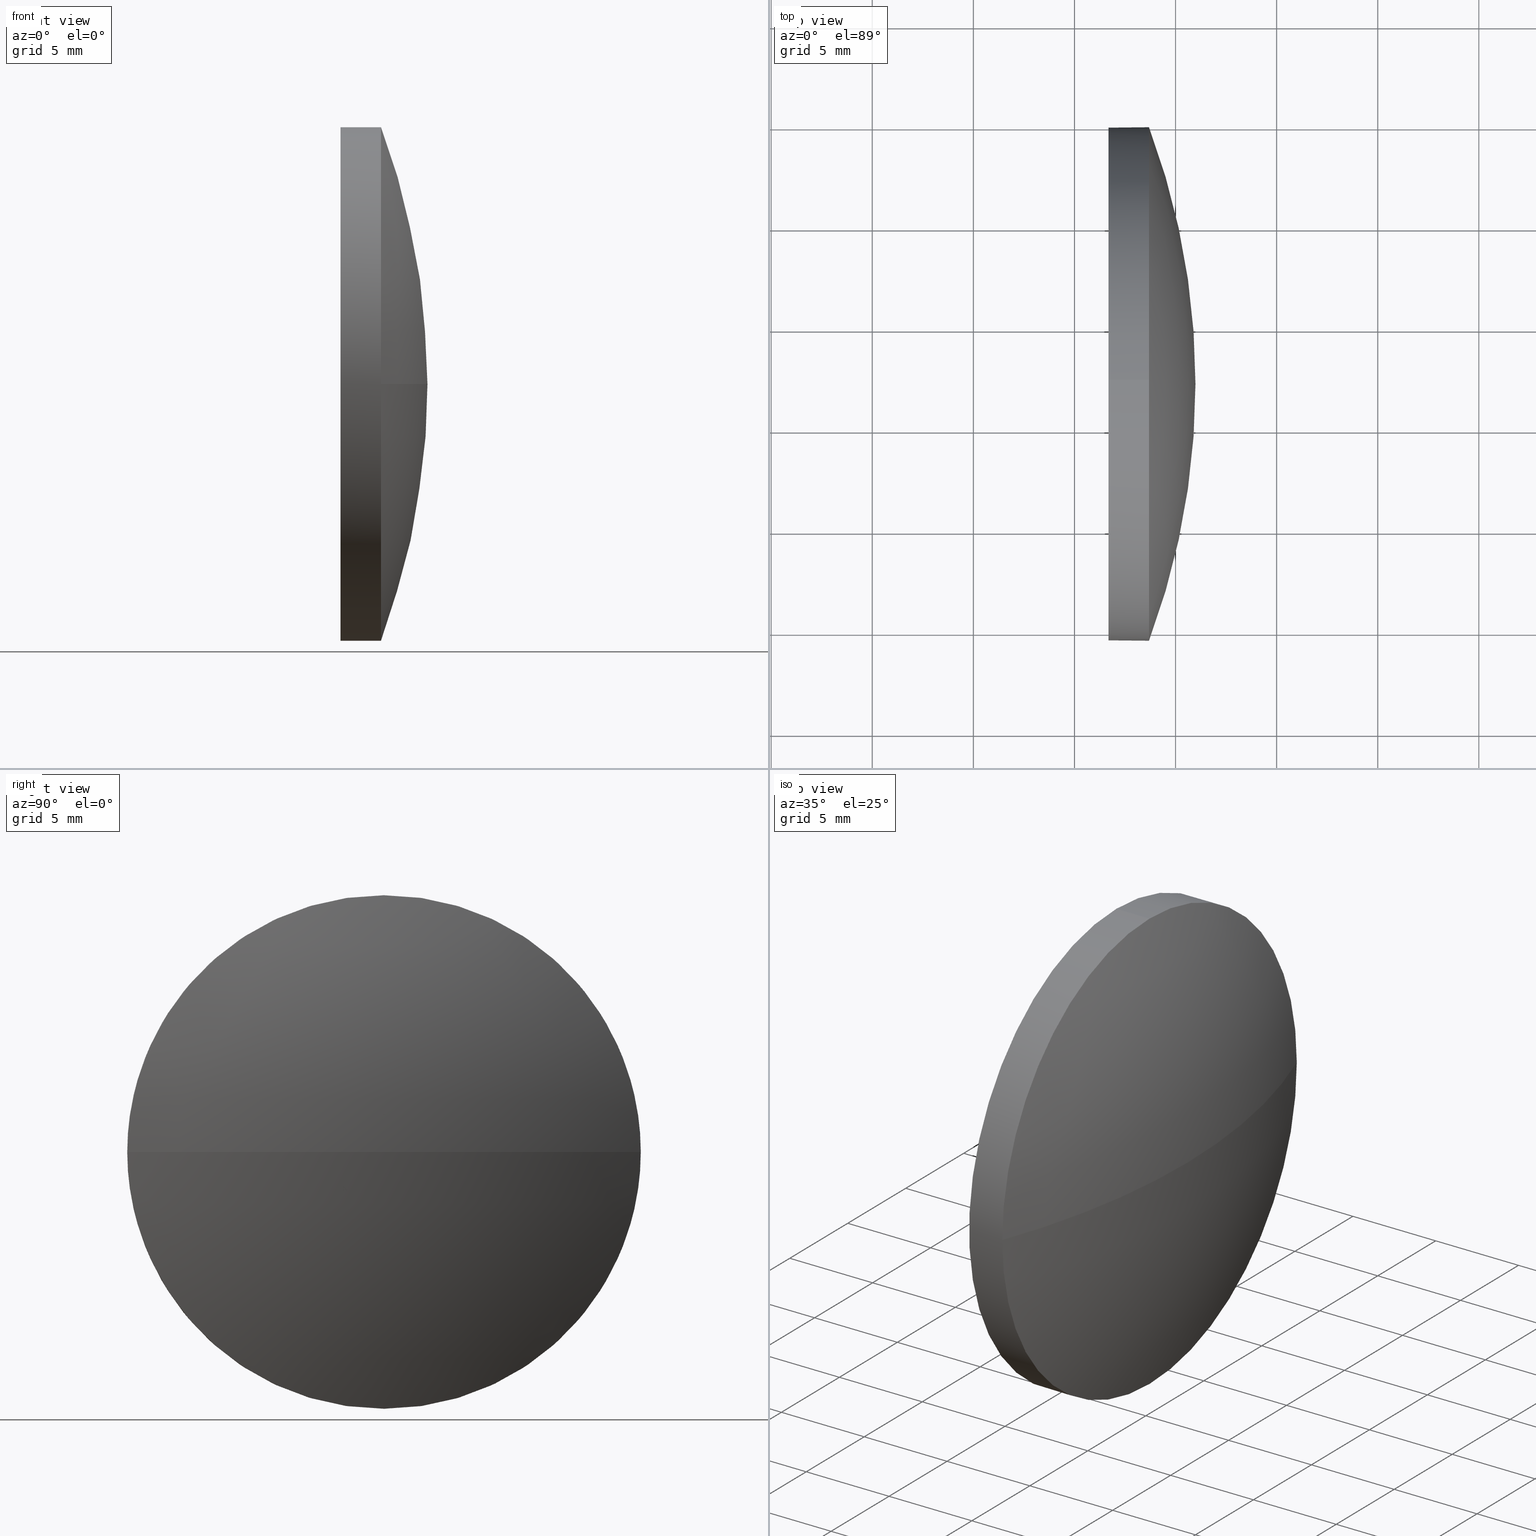
[diagram: canonical four-view strip — front | top / right | iso, engineering-drawing reading convention]
A machine part, canonical four-view strip (front | top / right | iso — engineering-drawing reading convention). The complete STEP part file that produces these views, byte-faithful:
ISO-10303-21;
HEADER;
FILE_DESCRIPTION (( 'STEP AP214' ),
    '1' );
FILE_NAME ('100467.STEP',
    '2019-06-11T02:08:26',
    ( '' ),
    ( '' ),
    'SwSTEP 2.0',
    'SolidWorks 2016',
    '' );
FILE_SCHEMA (( 'AUTOMOTIVE_DESIGN' ));
ENDSEC;

DATA;
#1 = UNCERTAINTY_MEASURE_WITH_UNIT (LENGTH_MEASURE( 1.000000000000000100E-005 ), #19, 'distance_accuracy_value', 'NONE');
#2 = AXIS2_PLACEMENT_3D ( 'NONE', #81, #112, #55 ) ;
#3 = DIRECTION ( 'NONE',  ( 0.0000000000000000000, 0.0000000000000000000, 1.000000000000000000 ) ) ;
#4 = AXIS2_PLACEMENT_3D ( 'NONE', #176, #29, #178 ) ;
#5 = FILL_AREA_STYLE_COLOUR ( '', #90 ) ;
#6 = ORIENTED_EDGE ( 'NONE', *, *, #128, .F. ) ;
#7 = DIRECTION ( 'NONE',  ( -1.000000000000000000, -0.0000000000000000000, -0.0000000000000000000 ) ) ;
#8 =( NAMED_UNIT ( * ) PLANE_ANGLE_UNIT ( ) SI_UNIT ( $, .RADIAN. ) );
#9 = CARTESIAN_POINT ( 'NONE',  ( 478.6849602909269400, 137.2007882096437800, 0.0000000000000000000 ) ) ;
#10 = AXIS2_PLACEMENT_3D ( 'NONE', #63, #78, #20 ) ;
#11 = VERTEX_POINT ( 'NONE', #93 ) ;
#12 = DIRECTION ( 'NONE',  ( 0.0000000000000000000, 0.0000000000000000000, 1.000000000000000000 ) ) ;
#13 = AXIS2_PLACEMENT_3D ( 'NONE', #124, #39, #137 ) ;
#14 = LINE ( 'NONE', #27, #159 ) ;
#15 = MANIFOLD_SOLID_BREP ( '��ת1', #95 ) ;
#16 = AXIS2_PLACEMENT_3D ( 'NONE', #9, #7, #165 ) ;
#17 = AXIS2_PLACEMENT_3D ( 'NONE', #170, #50, #106 ) ;
#18 =( NAMED_UNIT ( * ) SI_UNIT ( $, .STERADIAN. ) SOLID_ANGLE_UNIT ( ) );
#19 =( LENGTH_UNIT ( ) NAMED_UNIT ( * ) SI_UNIT ( .MILLI., .METRE. ) );
#20 = DIRECTION ( 'NONE',  ( 0.0000000000000000000, 1.000000000000000000, 0.0000000000000000000 ) ) ;
#21 = CIRCLE ( 'NONE', #2, 12.70000000000004500 ) ;
#22 = ORIENTED_EDGE ( 'NONE', *, *, #155, .F. ) ;
#23 = CARTESIAN_POINT ( 'NONE',  ( 478.6849602909269400, 137.2007882096437800, 0.0000000000000000000 ) ) ;
#24 = ADVANCED_FACE ( 'NONE', ( #41 ), #127, .T. ) ;
#25 = SURFACE_SIDE_STYLE ('',( #43 ) ) ;
#26 = AXIS2_PLACEMENT_3D ( 'NONE', #56, #152, #12 ) ;
#27 = CARTESIAN_POINT ( 'NONE',  ( 470.9467422552505700, 137.2007882096437800, -12.70000000000004500 ) ) ;
#28 = FACE_OUTER_BOUND ( 'NONE', #49, .T. ) ;
#29 = DIRECTION ( 'NONE',  ( -1.000000000000000000, -0.0000000000000000000, -0.0000000000000000000 ) ) ;
#30 =( NAMED_UNIT ( * ) SI_UNIT ( $, .STERADIAN. ) SOLID_ANGLE_UNIT ( ) );
#31 = ADVANCED_BREP_SHAPE_REPRESENTATION ( '100467', ( #15, #171 ), #33 ) ;
#32 = CIRCLE ( 'NONE', #73, 36.21304347826092900 ) ;
#33 =( GEOMETRIC_REPRESENTATION_CONTEXT ( 3 ) GLOBAL_UNCERTAINTY_ASSIGNED_CONTEXT ( ( #138 ) ) GLOBAL_UNIT_ASSIGNED_CONTEXT ( ( #126, #8, #30 ) ) REPRESENTATION_CONTEXT ( 'NONE', 'WORKASPACE' ) );
#34 = ORIENTED_EDGE ( 'NONE', *, *, #131, .T. ) ;
#35 = CARTESIAN_POINT ( 'NONE',  ( 476.6849602909269400, 137.2007882096437800, -12.70000000000004500 ) ) ;
#36 = CARTESIAN_POINT ( 'NONE',  ( 476.6849602909269400, 137.2007882096437800, 0.0000000000000000000 ) ) ;
#37 = ORIENTED_EDGE ( 'NONE', *, *, #139, .T. ) ;
#38 =( LENGTH_UNIT ( ) NAMED_UNIT ( * ) SI_UNIT ( .MILLI., .METRE. ) );
#39 = DIRECTION ( 'NONE',  ( 1.000000000000000000, 0.0000000000000000000, 0.0000000000000000000 ) ) ;
#40 = CARTESIAN_POINT ( 'NONE',  ( 444.7719168126660600, 137.2007882096437500, 0.0000000000000000000 ) ) ;
#41 = FACE_OUTER_BOUND ( 'NONE', #180, .T. ) ;
#42 = VERTEX_POINT ( 'NONE', #109 ) ;
#43 = SURFACE_STYLE_FILL_AREA ( #135 ) ;
#44 = EDGE_CURVE ( 'NONE', #157, #42, #32, .T. ) ;
#45 = CIRCLE ( 'NONE', #16, 12.70000000000004500 ) ;
#46 = EDGE_CURVE ( 'NONE', #57, #105, #84, .T. ) ;
#47 = VERTEX_POINT ( 'NONE', #119 ) ;
#48 = PRODUCT_DEFINITION ( 'δ֪', '', #59, #60 ) ;
#49 = EDGE_LOOP ( 'NONE', ( #130, #85 ) ) ;
#50 = DIRECTION ( 'NONE',  ( -1.000000000000000000, -0.0000000000000000000, -0.0000000000000000000 ) ) ;
#51 = PRESENTATION_LAYER_ASSIGNMENT (  '', '', ( #141 ) ) ;
#52 = CARTESIAN_POINT ( 'NONE',  ( 476.6849602909269400, 137.2007882096437800, 12.70000000000004500 ) ) ;
#53 = DIRECTION ( 'NONE',  ( -1.000000000000000000, -0.0000000000000000000, -0.0000000000000000000 ) ) ;
#54 = DIRECTION ( 'NONE',  ( 0.0000000000000000000, 0.0000000000000000000, 1.000000000000000000 ) ) ;
#55 = DIRECTION ( 'NONE',  ( 0.0000000000000000000, 0.0000000000000000000, 1.000000000000000000 ) ) ;
#56 = CARTESIAN_POINT ( 'NONE',  ( 478.6849602909269400, 137.2007882096437800, 0.0000000000000000000 ) ) ;
#57 = VERTEX_POINT ( 'NONE', #35 ) ;
#58 = STYLED_ITEM ( 'NONE', ( #149 ), #15 ) ;
#59 = PRODUCT_DEFINITION_FORMATION_WITH_SPECIFIED_SOURCE ( '�κ�', '', #76, .NOT_KNOWN. ) ;
#60 = PRODUCT_DEFINITION_CONTEXT ( 'detailed design', #169, 'design' ) ;
#61 = SHAPE_DEFINITION_REPRESENTATION ( #71, #31 ) ;
#62 = EDGE_LOOP ( 'NONE', ( #116, #88, #186, #140, #164 ) ) ;
#63 = CARTESIAN_POINT ( 'NONE',  ( 444.7719168126660600, 137.2007882096437500, 0.0000000000000000000 ) ) ;
#64 = PRODUCT_RELATED_PRODUCT_CATEGORY ( 'part', '', ( #76 ) ) ;
#65 = FILL_AREA_STYLE_COLOUR ( '', #129 ) ;
#66 = DIRECTION ( 'NONE',  ( -1.000000000000000000, -0.0000000000000000000, -0.0000000000000000000 ) ) ;
#67 = PLANE ( 'NONE',  #13 ) ;
#68 = CARTESIAN_POINT ( 'NONE',  ( 480.9849602909269500, 137.2007882096437500, 0.0000000000000000000 ) ) ;
#69 = EDGE_CURVE ( 'NONE', #47, #11, #102, .T. ) ;
#70 = SURFACE_STYLE_FILL_AREA ( #177 ) ;
#71 = PRODUCT_DEFINITION_SHAPE ( 'NONE', 'NONE',  #48 ) ;
#72 = VECTOR ( 'NONE', #66, 1000.000000000000000 ) ;
#73 = AXIS2_PLACEMENT_3D ( 'NONE', #122, #147, #160 ) ;
#74 = CYLINDRICAL_SURFACE ( 'NONE', #163, 12.70000000000004500 ) ;
#75 = EDGE_LOOP ( 'NONE', ( #103, #156, #142, #22 ) ) ;
#76 = PRODUCT ( '100467', '100467', '', ( #182 ) ) ;
#77 = MECHANICAL_DESIGN_GEOMETRIC_PRESENTATION_REPRESENTATION (  '', ( #141 ), #107 ) ;
#78 = DIRECTION ( 'NONE',  ( -0.0000000000000000000, 0.0000000000000000000, -1.000000000000000000 ) ) ;
#79 = ADVANCED_FACE ( 'NONE', ( #185 ), #74, .T. ) ;
#80 = EDGE_LOOP ( 'NONE', ( #111, #34, #183, #37, #121 ) ) ;
#81 = CARTESIAN_POINT ( 'NONE',  ( 476.6849602909269400, 137.2007882096437800, 0.0000000000000000000 ) ) ;
#82 = DIRECTION ( 'NONE',  ( 1.000000000000000000, 0.0000000000000000000, 0.0000000000000000000 ) ) ;
#83 = SURFACE_STYLE_USAGE ( .BOTH. , #98 ) ;
#84 = CIRCLE ( 'NONE', #161, 12.70000000000004500 ) ;
#85 = ORIENTED_EDGE ( 'NONE', *, *, #46, .T. ) ;
#86 = APPLICATION_PROTOCOL_DEFINITION ( 'draft international standard', 'automotive_design', 1998, #169 ) ;
#87 = CYLINDRICAL_SURFACE ( 'NONE', #17, 12.70000000000004500 ) ;
#88 = ORIENTED_EDGE ( 'NONE', *, *, #184, .T. ) ;
#89 = PRESENTATION_LAYER_ASSIGNMENT (  '', '', ( #58 ) ) ;
#90 = COLOUR_RGB ( '',1.000000000000000000, 1.000000000000000000, 1.000000000000000000 ) ;
#91 = DIRECTION ( 'NONE',  ( 0.0000000000000000000, 0.0000000000000000000, 1.000000000000000000 ) ) ;
#92 =( NAMED_UNIT ( * ) PLANE_ANGLE_UNIT ( ) SI_UNIT ( $, .RADIAN. ) );
#93 = CARTESIAN_POINT ( 'NONE',  ( 478.6849602909269400, 149.9007882096438200, 0.0000000000000000000 ) ) ;
#94 = SPHERICAL_SURFACE ( 'NONE', #174, 36.21304347826092900 ) ;
#95 = CLOSED_SHELL ( 'NONE', ( #97, #24, #123, #79, #134 ) ) ;
#96 = CARTESIAN_POINT ( 'NONE',  ( 478.6849602909269400, 137.2007882096437800, -12.70000000000004500 ) ) ;
#97 = ADVANCED_FACE ( 'NONE', ( #166 ), #87, .T. ) ;
#98 = SURFACE_SIDE_STYLE ('',( #70 ) ) ;
#99 = CIRCLE ( 'NONE', #181, 36.21304347826092900 ) ;
#100 =( NAMED_UNIT ( * ) SI_UNIT ( $, .STERADIAN. ) SOLID_ANGLE_UNIT ( ) );
#101 = PRESENTATION_STYLE_ASSIGNMENT (( #83 ) ) ;
#102 = CIRCLE ( 'NONE', #158, 12.70000000000004500 ) ;
#103 = ORIENTED_EDGE ( 'NONE', *, *, #44, .F. ) ;
#104 = EDGE_CURVE ( 'NONE', #157, #11, #99, .T. ) ;
#105 = VERTEX_POINT ( 'NONE', #52 ) ;
#106 = DIRECTION ( 'NONE',  ( 0.0000000000000000000, 0.0000000000000000000, 1.000000000000000000 ) ) ;
#107 =( GEOMETRIC_REPRESENTATION_CONTEXT ( 3 ) GLOBAL_UNCERTAINTY_ASSIGNED_CONTEXT ( ( #120 ) ) GLOBAL_UNIT_ASSIGNED_CONTEXT ( ( #38, #136, #100 ) ) REPRESENTATION_CONTEXT ( 'NONE', 'WORKASPACE' ) );
#108 = DIRECTION ( 'NONE',  ( -1.000000000000000000, -0.0000000000000000000, -0.0000000000000000000 ) ) ;
#109 = CARTESIAN_POINT ( 'NONE',  ( 478.6849602909269400, 124.5007882096436900, -1.555301434917144500E-015 ) ) ;
#110 = CARTESIAN_POINT ( 'NONE',  ( 0.0000000000000000000, 0.0000000000000000000, 0.0000000000000000000 ) ) ;
#111 = ORIENTED_EDGE ( 'NONE', *, *, #184, .F. ) ;
#112 = DIRECTION ( 'NONE',  ( -1.000000000000000000, -0.0000000000000000000, -0.0000000000000000000 ) ) ;
#113 = DIRECTION ( 'NONE',  ( -0.0000000000000000000, 0.0000000000000000000, -1.000000000000000000 ) ) ;
#114 = DIRECTION ( 'NONE',  ( 0.0000000000000000000, 1.000000000000000000, 0.0000000000000000000 ) ) ;
#115 = CIRCLE ( 'NONE', #4, 12.70000000000004500 ) ;
#116 = ORIENTED_EDGE ( 'NONE', *, *, #128, .T. ) ;
#117 = ORIENTED_EDGE ( 'NONE', *, *, #104, .F. ) ;
#118 = VERTEX_POINT ( 'NONE', #96 ) ;
#119 = CARTESIAN_POINT ( 'NONE',  ( 478.6849602909269400, 137.2007882096437800, 12.70000000000004500 ) ) ;
#120 = UNCERTAINTY_MEASURE_WITH_UNIT (LENGTH_MEASURE( 1.000000000000000100E-005 ), #38, 'distance_accuracy_value', 'NONE');
#121 = ORIENTED_EDGE ( 'NONE', *, *, #46, .F. ) ;
#122 = CARTESIAN_POINT ( 'NONE',  ( 444.7719168126660600, 137.2007882096437500, 0.0000000000000000000 ) ) ;
#123 = ADVANCED_FACE ( 'NONE', ( #144 ), #94, .T. ) ;
#124 = CARTESIAN_POINT ( 'NONE',  ( 476.6849602909269400, 137.2007882096437800, 0.0000000000000000000 ) ) ;
#125 = LINE ( 'NONE', #150, #72 ) ;
#126 =( LENGTH_UNIT ( ) NAMED_UNIT ( * ) SI_UNIT ( .MILLI., .METRE. ) );
#127 = SPHERICAL_SURFACE ( 'NONE', #10, 36.21304347826092900 ) ;
#128 = EDGE_CURVE ( 'NONE', #11, #118, #115, .T. ) ;
#129 = COLOUR_RGB ( '',1.000000000000000000, 1.000000000000000000, 1.000000000000000000 ) ;
#130 = ORIENTED_EDGE ( 'NONE', *, *, #143, .T. ) ;
#131 = EDGE_CURVE ( 'NONE', #118, #42, #45, .T. ) ;
#132 = DIRECTION ( 'NONE',  ( 0.0000000000000000000, 0.0000000000000000000, 1.000000000000000000 ) ) ;
#133 = SURFACE_STYLE_USAGE ( .BOTH. , #25 ) ;
#134 = ADVANCED_FACE ( 'NONE', ( #28 ), #67, .F. ) ;
#135 = FILL_AREA_STYLE ('',( #5 ) ) ;
#136 =( NAMED_UNIT ( * ) PLANE_ANGLE_UNIT ( ) SI_UNIT ( $, .RADIAN. ) );
#137 = DIRECTION ( 'NONE',  ( 0.0000000000000000000, 0.0000000000000000000, -1.000000000000000000 ) ) ;
#138 = UNCERTAINTY_MEASURE_WITH_UNIT (LENGTH_MEASURE( 1.000000000000000100E-005 ), #126, 'distance_accuracy_value', 'NONE');
#139 = EDGE_CURVE ( 'NONE', #47, #105, #125, .T. ) ;
#140 = ORIENTED_EDGE ( 'NONE', *, *, #139, .F. ) ;
#141 = STYLED_ITEM ( 'NONE', ( #101 ), #31 ) ;
#142 = ORIENTED_EDGE ( 'NONE', *, *, #69, .F. ) ;
#143 = EDGE_CURVE ( 'NONE', #105, #57, #21, .T. ) ;
#144 = FACE_OUTER_BOUND ( 'NONE', #75, .T. ) ;
#145 = ORIENTED_EDGE ( 'NONE', *, *, #44, .T. ) ;
#146 = CARTESIAN_POINT ( 'NONE',  ( 470.9467422552505700, 137.2007882096437800, 0.0000000000000000000 ) ) ;
#147 = DIRECTION ( 'NONE',  ( 0.0000000000000000000, 1.224646799147353200E-016, -1.000000000000000000 ) ) ;
#148 =( GEOMETRIC_REPRESENTATION_CONTEXT ( 3 ) GLOBAL_UNCERTAINTY_ASSIGNED_CONTEXT ( ( #1 ) ) GLOBAL_UNIT_ASSIGNED_CONTEXT ( ( #19, #92, #18 ) ) REPRESENTATION_CONTEXT ( 'NONE', 'WORKASPACE' ) );
#149 = PRESENTATION_STYLE_ASSIGNMENT (( #133 ) ) ;
#150 = CARTESIAN_POINT ( 'NONE',  ( 470.9467422552505700, 137.2007882096437800, 12.70000000000004500 ) ) ;
#151 = DIRECTION ( 'NONE',  ( 1.000000000000000000, 0.0000000000000000000, 0.0000000000000000000 ) ) ;
#152 = DIRECTION ( 'NONE',  ( -1.000000000000000000, -0.0000000000000000000, -0.0000000000000000000 ) ) ;
#153 = MECHANICAL_DESIGN_GEOMETRIC_PRESENTATION_REPRESENTATION (  '', ( #58 ), #148 ) ;
#154 = ORIENTED_EDGE ( 'NONE', *, *, #131, .F. ) ;
#155 = EDGE_CURVE ( 'NONE', #42, #47, #179, .T. ) ;
#156 = ORIENTED_EDGE ( 'NONE', *, *, #104, .T. ) ;
#157 = VERTEX_POINT ( 'NONE', #68 ) ;
#158 = AXIS2_PLACEMENT_3D ( 'NONE', #23, #172, #91 ) ;
#159 = VECTOR ( 'NONE', #53, 1000.000000000000000 ) ;
#160 = DIRECTION ( 'NONE',  ( 0.0000000000000000000, 1.000000000000000000, 1.224646799147353500E-016 ) ) ;
#161 = AXIS2_PLACEMENT_3D ( 'NONE', #36, #108, #3 ) ;
#162 = DIRECTION ( 'NONE',  ( -1.000000000000000000, -0.0000000000000000000, -0.0000000000000000000 ) ) ;
#163 = AXIS2_PLACEMENT_3D ( 'NONE', #146, #162, #132 ) ;
#164 = ORIENTED_EDGE ( 'NONE', *, *, #69, .T. ) ;
#165 = DIRECTION ( 'NONE',  ( 0.0000000000000000000, 0.0000000000000000000, 1.000000000000000000 ) ) ;
#166 = FACE_OUTER_BOUND ( 'NONE', #62, .T. ) ;
#167 = APPLICATION_CONTEXT ( 'automotive_design' ) ;
#168 = CARTESIAN_POINT ( 'NONE',  ( 444.7719168126660600, 137.2007882096437500, 0.0000000000000000000 ) ) ;
#169 = APPLICATION_CONTEXT ( 'automotive_design' ) ;
#170 = CARTESIAN_POINT ( 'NONE',  ( 470.9467422552505700, 137.2007882096437800, 0.0000000000000000000 ) ) ;
#171 = AXIS2_PLACEMENT_3D ( 'NONE', #110, #54, #151 ) ;
#172 = DIRECTION ( 'NONE',  ( -1.000000000000000000, -0.0000000000000000000, -0.0000000000000000000 ) ) ;
#173 = DIRECTION ( 'NONE',  ( -0.0000000000000000000, 0.0000000000000000000, 1.000000000000000000 ) ) ;
#174 = AXIS2_PLACEMENT_3D ( 'NONE', #168, #113, #114 ) ;
#175 = APPLICATION_PROTOCOL_DEFINITION ( 'draft international standard', 'automotive_design', 1998, #167 ) ;
#176 = CARTESIAN_POINT ( 'NONE',  ( 478.6849602909269400, 137.2007882096437800, 0.0000000000000000000 ) ) ;
#177 = FILL_AREA_STYLE ('',( #65 ) ) ;
#178 = DIRECTION ( 'NONE',  ( 0.0000000000000000000, 0.0000000000000000000, 1.000000000000000000 ) ) ;
#179 = CIRCLE ( 'NONE', #26, 12.70000000000004500 ) ;
#180 = EDGE_LOOP ( 'NONE', ( #117, #145, #154, #6 ) ) ;
#181 = AXIS2_PLACEMENT_3D ( 'NONE', #40, #173, #82 ) ;
#182 = PRODUCT_CONTEXT ( 'NONE', #167, 'mechanical' ) ;
#183 = ORIENTED_EDGE ( 'NONE', *, *, #155, .T. ) ;
#184 = EDGE_CURVE ( 'NONE', #118, #57, #14, .T. ) ;
#185 = FACE_OUTER_BOUND ( 'NONE', #80, .T. ) ;
#186 = ORIENTED_EDGE ( 'NONE', *, *, #143, .F. ) ;
ENDSEC;
END-ISO-10303-21;
